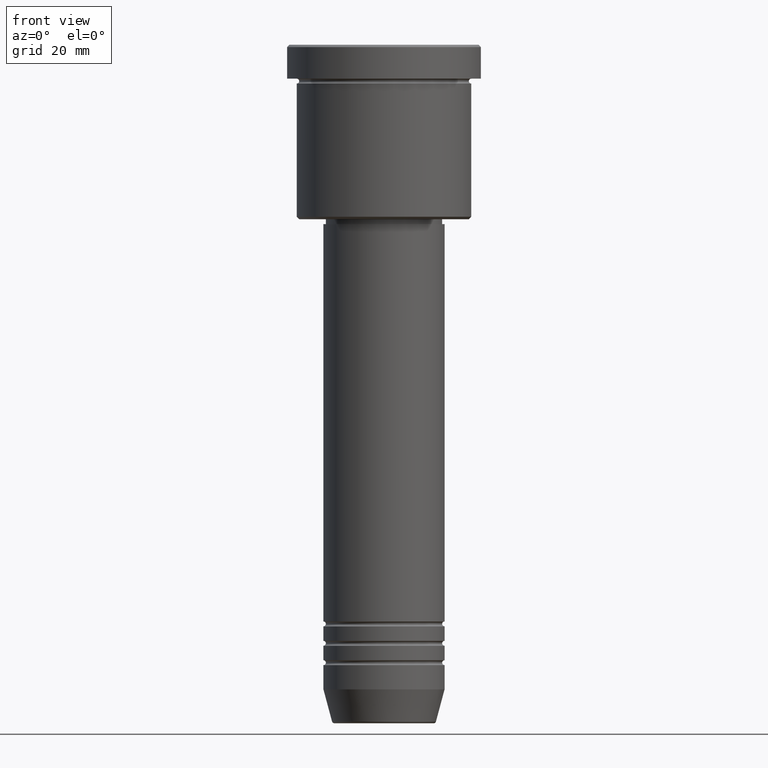
[diagram: clean part render]
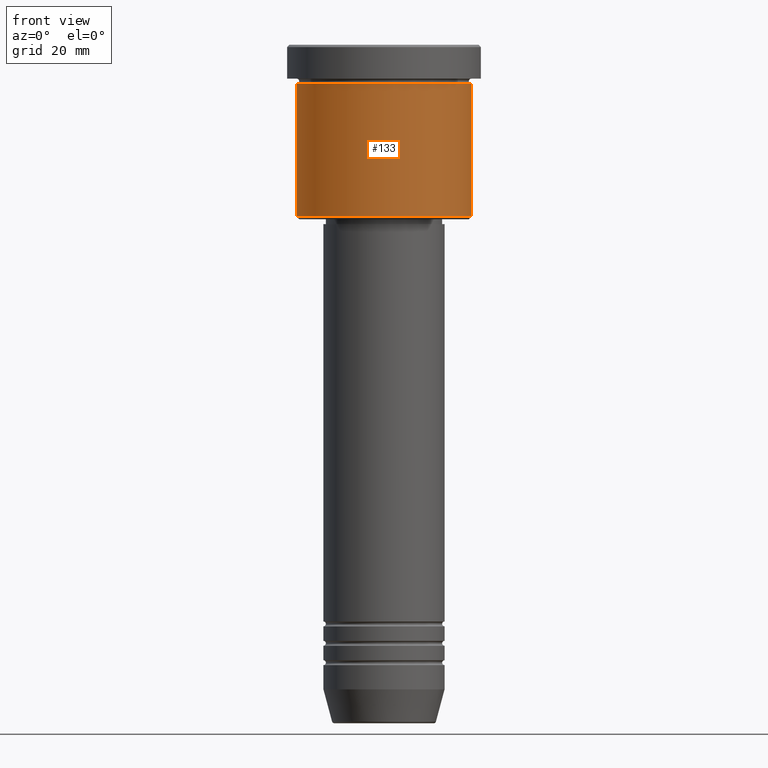
[diagram: same view with one face highlighted and labeled with its STEP entity id]
A machine part, front view. The second image highlights one B-rep face of the part: STEP entity #133.
In plain terms, the highlighted cylindrical surface (partial cylindrical patch) has radius 18 mm, axis along (-0, -0, 1).
Its self-contained STEP definition (entity closure, byte-faithful):
#4 = VECTOR ( 'NONE', #1109, 1000.000000000000000 ) ;
#96 = CARTESIAN_POINT ( 'NONE',  ( -18.00000000000000000, 2.204364238465235428E-15, -35.50000000000000711 ) ) ;
#112 = AXIS2_PLACEMENT_3D ( 'NONE', #838, #656, #203 ) ;
#119 = ORIENTED_EDGE ( 'NONE', *, *, #985, .T. ) ;
#133 = ADVANCED_FACE ( 'NONE', ( #789 ), #1045, .T. ) ;
#140 = AXIS2_PLACEMENT_3D ( 'NONE', #869, #313, #502 ) ;
#149 = CARTESIAN_POINT ( 'NONE',  ( 0.000000000000000000, 0.000000000000000000, -35.50000000000000711 ) ) ;
#203 = DIRECTION ( 'NONE',  ( 1.000000000000000000, 0.000000000000000000, 0.000000000000000000 ) ) ;
#308 = LINE ( 'NONE', #397, #4 ) ;
#313 = DIRECTION ( 'NONE',  ( -0.000000000000000000, -0.000000000000000000, 1.000000000000000000 ) ) ;
#330 = EDGE_CURVE ( 'NONE', #934, #389, #1101, .T. ) ;
#332 = DIRECTION ( 'NONE',  ( -0.000000000000000000, -0.000000000000000000, 1.000000000000000000 ) ) ;
#336 = ORIENTED_EDGE ( 'NONE', *, *, #446, .F. ) ;
#338 = CARTESIAN_POINT ( 'NONE',  ( -18.00000000000000000, 2.204364238465235428E-15, 0.000000000000000000 ) ) ;
#348 = EDGE_LOOP ( 'NONE', ( #715, #768, #119, #336 ) ) ;
#358 = AXIS2_PLACEMENT_3D ( 'NONE', #149, #620, #1070 ) ;
#389 = VERTEX_POINT ( 'NONE', #1168 ) ;
#397 = CARTESIAN_POINT ( 'NONE',  ( 18.00000000000000000, 0.000000000000000000, 0.000000000000000000 ) ) ;
#446 = EDGE_CURVE ( 'NONE', #1147, #666, #673, .T. ) ;
#502 = DIRECTION ( 'NONE',  ( 1.000000000000000000, 0.000000000000000000, 0.000000000000000000 ) ) ;
#601 = EDGE_CURVE ( 'NONE', #934, #1147, #1071, .T. ) ;
#620 = DIRECTION ( 'NONE',  ( -0.000000000000000000, -0.000000000000000000, 1.000000000000000000 ) ) ;
#656 = DIRECTION ( 'NONE',  ( -0.000000000000000000, -0.000000000000000000, 1.000000000000000000 ) ) ;
#666 = VERTEX_POINT ( 'NONE', #709 ) ;
#673 = CIRCLE ( 'NONE', #112, 18.00000000000000000 ) ;
#709 = CARTESIAN_POINT ( 'NONE',  ( 18.00000000000000000, 0.000000000000000000, -7.999999999999996447 ) ) ;
#715 = ORIENTED_EDGE ( 'NONE', *, *, #601, .F. ) ;
#768 = ORIENTED_EDGE ( 'NONE', *, *, #330, .T. ) ;
#789 = FACE_OUTER_BOUND ( 'NONE', #348, .T. ) ;
#838 = CARTESIAN_POINT ( 'NONE',  ( 0.000000000000000000, 0.000000000000000000, -7.999999999999996447 ) ) ;
#869 = CARTESIAN_POINT ( 'NONE',  ( 0.000000000000000000, 0.000000000000000000, 0.000000000000000000 ) ) ;
#891 = VECTOR ( 'NONE', #332, 1000.000000000000000 ) ;
#934 = VERTEX_POINT ( 'NONE', #96 ) ;
#985 = EDGE_CURVE ( 'NONE', #389, #666, #308, .T. ) ;
#1045 = CYLINDRICAL_SURFACE ( 'NONE', #140, 18.00000000000000000 ) ;
#1070 = DIRECTION ( 'NONE',  ( -1.000000000000000000, 0.000000000000000000, 0.000000000000000000 ) ) ;
#1071 = LINE ( 'NONE', #338, #891 ) ;
#1101 = CIRCLE ( 'NONE', #358, 18.00000000000000000 ) ;
#1109 = DIRECTION ( 'NONE',  ( -0.000000000000000000, -0.000000000000000000, 1.000000000000000000 ) ) ;
#1147 = VERTEX_POINT ( 'NONE', #1154 ) ;
#1154 = CARTESIAN_POINT ( 'NONE',  ( -18.00000000000000000, 2.204364238465235428E-15, -7.999999999999996447 ) ) ;
#1168 = CARTESIAN_POINT ( 'NONE',  ( 18.00000000000000000, 0.000000000000000000, -35.50000000000000711 ) ) ;